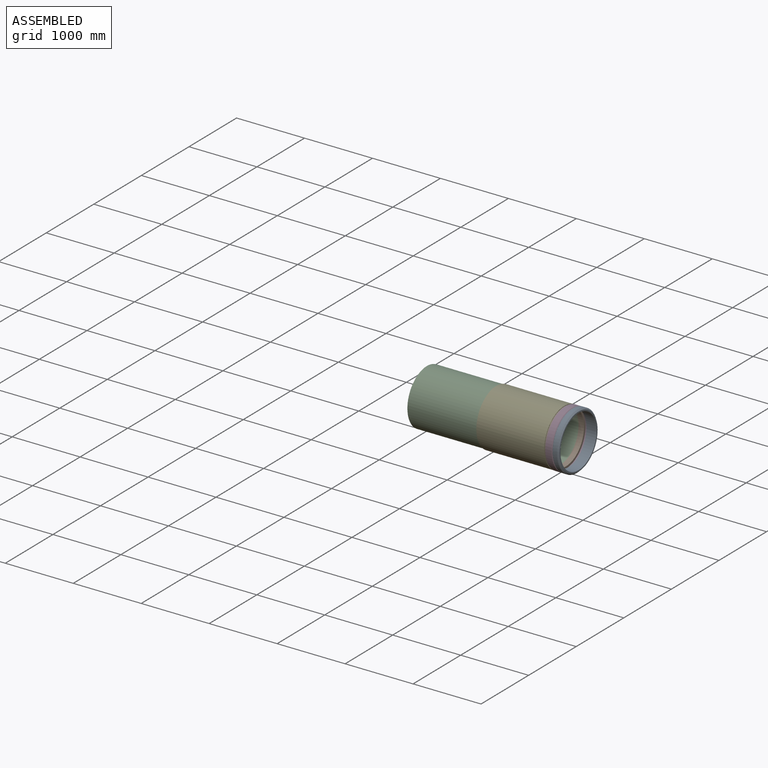
[diagram: assembled view]
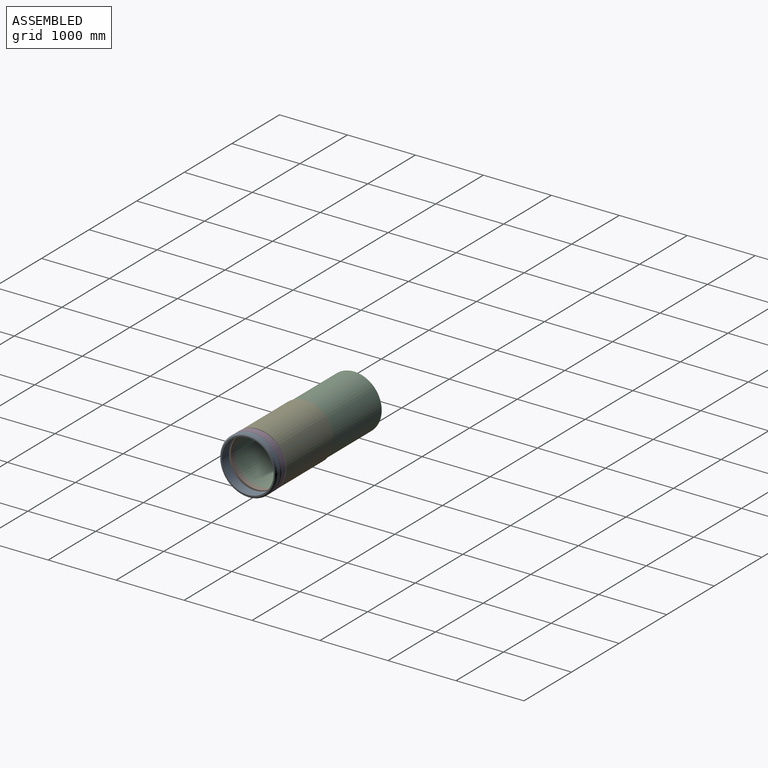
[diagram: assembled view, second angle]
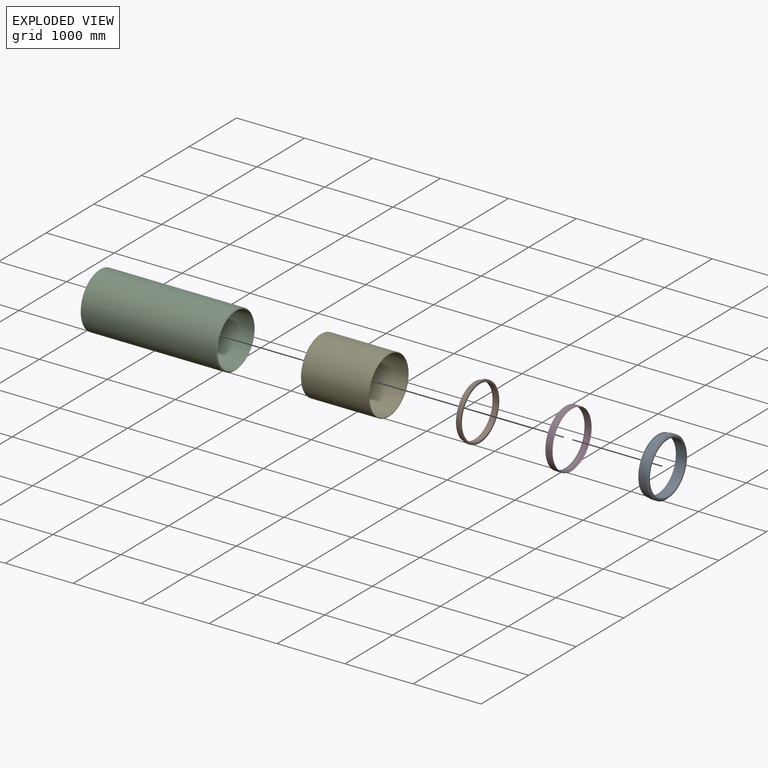
[diagram: exploded view]
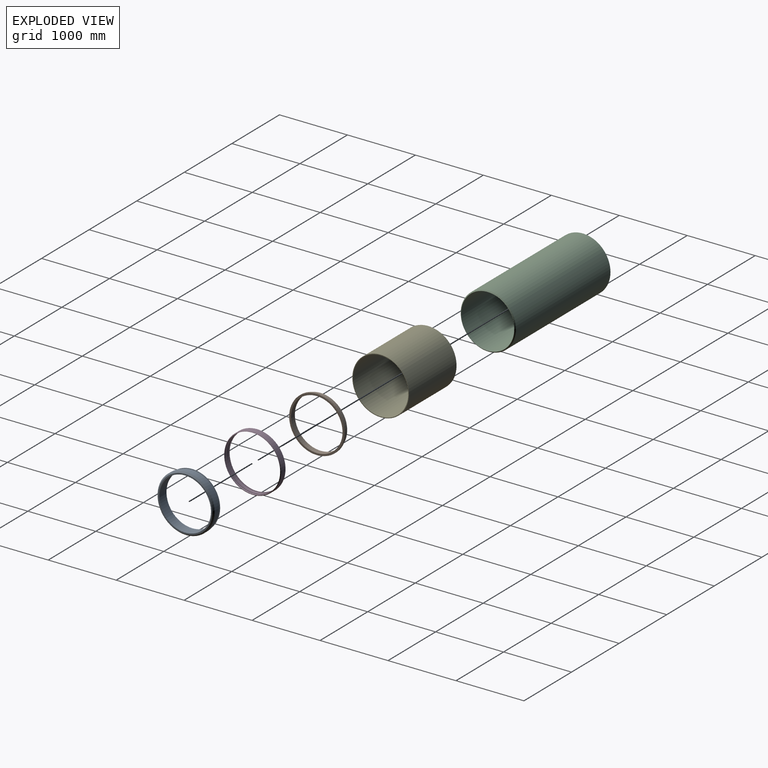
[diagram: exploded view, second angle]
ASSEMBLY  parts=5 mates=4
PART A: 10 faces, bbox 150x840x840 mm
  f0: cylinder r=403.5mm len=807mm, axis (-1,0,0), area 126763.3mm2, adj f6,f8
  f1: plane 819x819mm, normal (-1,0,0), area 73168.5mm2, adj f3,f7
  f2: cylinder r=420mm len=840mm, axis (-1,0,0), area 171531mm2, adj f5,f9
  f3: cylinder r=380mm len=760mm, axis (-1,0,0), area 358141.6mm2, adj f1,f4
  f4: plane 800x800mm, normal (1,0,0), area 49008.8mm2, adj f3,f5
  f5: cone r=400mm half-angle=45deg, axis (-1,0,0), area 72863.3mm2, adj f2,f4
  f6: plane 830x830mm, normal (-1,0,0), area 29571mm2, adj f0,f9
  f7: cylinder r=409.5mm len=819mm, axis (-1,0,0), area 25729.6mm2, adj f1,f8
  f8: plane 819x819mm, normal (1,0,0), area 15324.7mm2, adj f0,f7
  f9: cone r=420mm half-angle=45deg, axis (1,0,0), area 18549mm2, adj f2,f6
PART B: 9 faces, bbox 81x818x818 mm
  f0: cylinder r=409mm len=818mm, axis (1,0,0), area 56536.1mm2, adj f5,f8
  f1: plane 781x781mm, normal (-1,0,0), area 27800.7mm2, adj f3,f6
  f2: plane 812x812mm, normal (1,0,0), area 66586.1mm2, adj f3,f4
  f3: cylinder r=379mm len=758mm, axis (1,0,0), area 192887.5mm2, adj f1,f2
  f4: cylinder r=406mm len=812mm, axis (1,0,0), area 25509.7mm2, adj f2,f5
  f5: plane 818x818mm, normal (1,0,0), area 7681.2mm2, adj f0,f4
  f6: cylinder r=390.5mm len=781mm, axis (-1,0,0), area 78514.7mm2, adj f1,f7
  f7: plane 784x784mm, normal (-1,0,0), area 3687.4mm2, adj f6,f8
  f8: cone r=409mm half-angle=45deg, axis (1,0,0), area 60498.7mm2, adj f0,f7
PART C: 5 faces, bbox 2000x813x813 mm
  f0: cylinder r=390.5mm len=2000mm, axis (1,0,0), area 4907167.7mm2, adj f2,f3
  f1: cylinder r=406.5mm len=1986mm, axis (1,0,0), area 5072472mm2, adj f2,f4
  f2: plane 813x813mm, normal (-1,0,0), area 40061.6mm2, adj f0,f1
  f3: plane 785x785mm, normal (1,0,0), area 4919.7mm2, adj f0,f4
  f4: cone r=392.5mm half-angle=45deg, axis (-1,0,0), area 49698.1mm2, adj f1,f3
PART D: 10 faces, bbox 100x838x838 mm
  f0: cylinder r=419mm len=838mm, axis (-1,0,0), area 244836.9mm2, adj f1,f9
  f1: plane 838x838mm, normal (-1,0,0), area 38783mm2, adj f0,f2
  f2: cylinder r=404mm len=808mm, axis (-1,0,0), area 25384.1mm2, adj f1,f3
  f3: plane 820x820mm, normal (1,0,0), area 15343.5mm2, adj f2,f4
  f4: cylinder r=410mm len=820mm, axis (-1,0,0), area 123653.1mm2, adj f3,f5
  f5: plane 820x820mm, normal (-1,0,0), area 15343.5mm2, adj f4,f6
  f6: cylinder r=404mm len=808mm, axis (-1,0,0), area 25384.1mm2, adj f5,f7
  f7: plane 820x820mm, normal (1,0,0), area 15343.5mm2, adj f6,f8
  f8: cylinder r=410mm len=820mm, axis (-1,0,0), area 82435.4mm2, adj f7,f9
  f9: cone r=419mm half-angle=52.1deg, axis (-1,0,0), area 29694.5mm2, adj f0,f8
PART E: 4 faces, bbox 1000x833x833 mm
  f0: cylinder r=406.5mm len=1000mm, axis (1,0,0), area 2554114.8mm2, adj f2,f3
  f1: cylinder r=416.5mm len=1000mm, axis (1,0,0), area 2616946.7mm2, adj f2,f3
  f2: plane 833x833mm, normal (-1,0,0), area 25855.3mm2, adj f0,f1
  f3: plane 833x833mm, normal (1,0,0), area 25855.3mm2, adj f0,f1
PLACE A t=(-1416,0,0)mm
PLACE B t=(-451,0,0)mm
PLACE C at identity
PLACE D t=(-922.91,0,393.55)mm
PLACE E t=(22,0,0)mm
MATE fastened D.f0 <-> B.f4  axis (-1,0,0) through (-961,0,0)mm
MATE fastened A.f7 <-> D.f0  axis (-1,0,0) through (-916,0,0)mm
MATE fastened E.f0 <-> B.f0  axis (1,0,0) through (-978,0,0)mm
MATE fastened B.f3 <-> C.f0  axis (1,0,0) through (-951,0,0)mm
